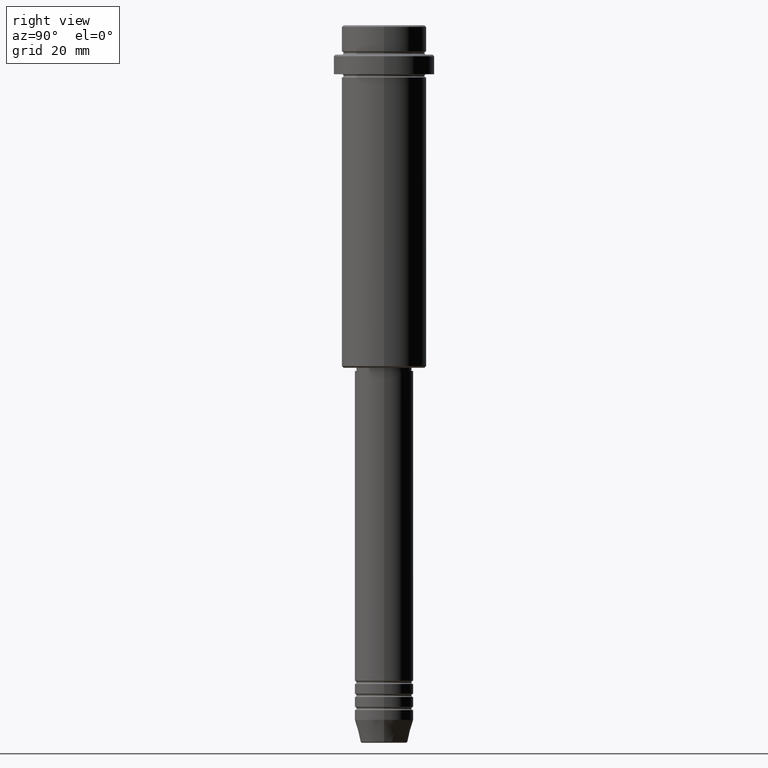
[diagram: clean part render]
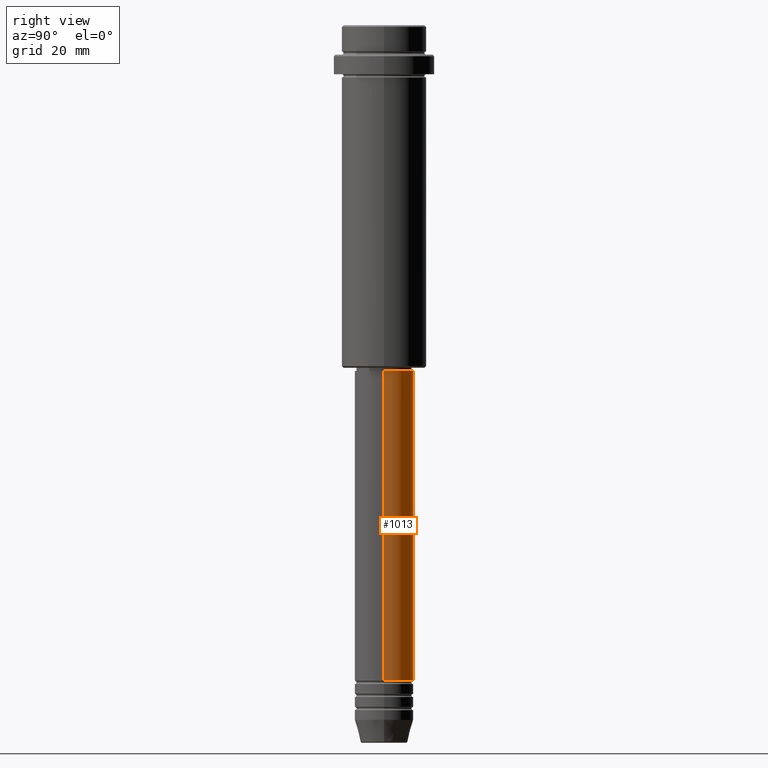
[diagram: same view with one face highlighted and labeled with its STEP entity id]
A machine part, right view. The second image highlights one B-rep face of the part: STEP entity #1013.
In plain terms, the highlighted cylindrical surface (edge-blend (fillet) strip) has radius 9 mm, axis along (-0, -0, 1).
Its self-contained STEP definition (entity closure, byte-faithful):
#35 = CARTESIAN_POINT ( 'NONE',  ( 0.000000000000000000, 0.000000000000000000, -106.0000000000000142 ) ) ;
#42 = DIRECTION ( 'NONE',  ( -0.000000000000000000, -0.000000000000000000, 1.000000000000000000 ) ) ;
#94 = ORIENTED_EDGE ( 'NONE', *, *, #407, .T. ) ;
#116 = EDGE_CURVE ( 'NONE', #117, #384, #986, .T. ) ;
#117 = VERTEX_POINT ( 'NONE', #499 ) ;
#130 = ORIENTED_EDGE ( 'NONE', *, *, #841, .F. ) ;
#131 = DIRECTION ( 'NONE',  ( 1.000000000000000000, 0.000000000000000000, 0.000000000000000000 ) ) ;
#241 = VERTEX_POINT ( 'NONE', #502 ) ;
#265 = ORIENTED_EDGE ( 'NONE', *, *, #808, .T. ) ;
#384 = VERTEX_POINT ( 'NONE', #393 ) ;
#393 = CARTESIAN_POINT ( 'NONE',  ( -9.000000000000001776, 1.102182119232617911E-15, -106.0000000000000142 ) ) ;
#407 = EDGE_CURVE ( 'NONE', #241, #384, #725, .T. ) ;
#418 = CARTESIAN_POINT ( 'NONE',  ( 0.000000000000000000, 0.000000000000000000, -200.9999999999999147 ) ) ;
#463 = AXIS2_PLACEMENT_3D ( 'NONE', #418, #500, #1291 ) ;
#476 = CARTESIAN_POINT ( 'NONE',  ( 0.000000000000000000, 0.000000000000000000, 0.000000000000000000 ) ) ;
#499 = CARTESIAN_POINT ( 'NONE',  ( 9.000000000000001776, 0.000000000000000000, -106.0000000000000142 ) ) ;
#500 = DIRECTION ( 'NONE',  ( -0.000000000000000000, -0.000000000000000000, 1.000000000000000000 ) ) ;
#502 = CARTESIAN_POINT ( 'NONE',  ( -9.000000000000000000, 1.102182119232617714E-15, -200.9999999999999147 ) ) ;
#543 = CARTESIAN_POINT ( 'NONE',  ( 9.000000000000001776, 0.000000000000000000, 0.000000000000000000 ) ) ;
#545 = VERTEX_POINT ( 'NONE', #1173 ) ;
#561 = CYLINDRICAL_SURFACE ( 'NONE', #637, 9.000000000000001776 ) ;
#637 = AXIS2_PLACEMENT_3D ( 'NONE', #476, #42, #131 ) ;
#668 = FACE_OUTER_BOUND ( 'NONE', #1413, .T. ) ;
#723 = DIRECTION ( 'NONE',  ( 1.000000000000000000, 0.000000000000000000, 0.000000000000000000 ) ) ;
#725 = LINE ( 'NONE', #1168, #1124 ) ;
#805 = VECTOR ( 'NONE', #1308, 1000.000000000000000 ) ;
#808 = EDGE_CURVE ( 'NONE', #545, #241, #1361, .T. ) ;
#841 = EDGE_CURVE ( 'NONE', #545, #117, #996, .T. ) ;
#895 = DIRECTION ( 'NONE',  ( -0.000000000000000000, -0.000000000000000000, 1.000000000000000000 ) ) ;
#986 = CIRCLE ( 'NONE', #1216, 9.000000000000001776 ) ;
#996 = LINE ( 'NONE', #543, #805 ) ;
#1013 = ADVANCED_FACE ( 'NONE', ( #668 ), #561, .T. ) ;
#1124 = VECTOR ( 'NONE', #1182, 1000.000000000000000 ) ;
#1168 = CARTESIAN_POINT ( 'NONE',  ( -9.000000000000001776, 1.102182119232617911E-15, 0.000000000000000000 ) ) ;
#1173 = CARTESIAN_POINT ( 'NONE',  ( 9.000000000000000000, 0.000000000000000000, -200.9999999999999147 ) ) ;
#1182 = DIRECTION ( 'NONE',  ( -0.000000000000000000, -0.000000000000000000, 1.000000000000000000 ) ) ;
#1216 = AXIS2_PLACEMENT_3D ( 'NONE', #35, #895, #723 ) ;
#1291 = DIRECTION ( 'NONE',  ( 1.000000000000000000, 0.000000000000000000, 0.000000000000000000 ) ) ;
#1308 = DIRECTION ( 'NONE',  ( -0.000000000000000000, -0.000000000000000000, 1.000000000000000000 ) ) ;
#1361 = CIRCLE ( 'NONE', #463, 9.000000000000000000 ) ;
#1392 = ORIENTED_EDGE ( 'NONE', *, *, #116, .F. ) ;
#1413 = EDGE_LOOP ( 'NONE', ( #265, #94, #1392, #130 ) ) ;